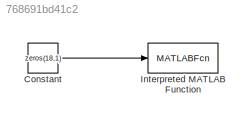
MODEL slx_768691bd41c2
KIND model
BLOCK [Constant] Constant
  Value = zeros(18,1)
BLOCK [MATLABFcn] Interpreted MATLAB Function
  MATLABFcn = nlplant
  OutputDimensions = 18
  OutputSignalType = real
  Ports = [1, 1]
LINE Constant:1 -> Interpreted MATLAB Function:1
